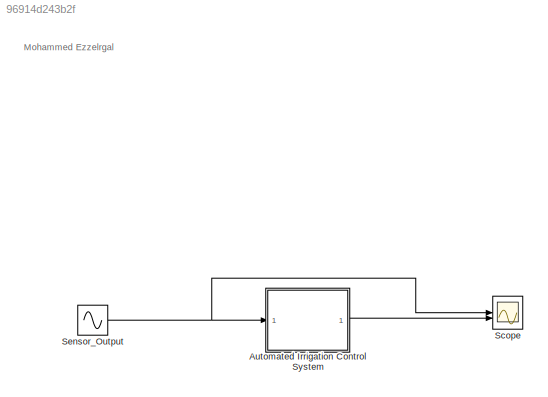
MODEL slx_96914d243b2f
KIND model
CONFIG AbsTol = auto
CONFIG EnableMultiTasking = off
CONFIG FixedStep = 1e-3
CONFIG MaxStep = auto
CONFIG MinStep = auto
CONFIG RelTol = 1e-3
CONFIG SampleTimeConstraint = Unconstrained
CONFIG SolverName = FixedStepAuto
CONFIG StartTime = 0.0
CONFIG StopTime = 100
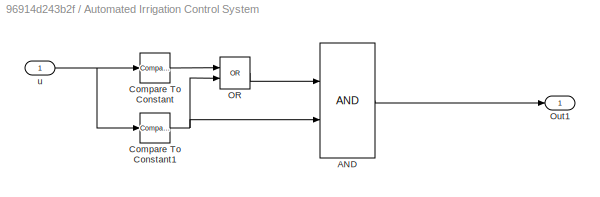
BLOCK [SubSystem] Automated Irrigation Control System
BLOCK [Logic] Automated Irrigation Control System/AND
  AllPortsSameDT = off
  OutDataTypeStr = boolean
BLOCK [Reference] Automated Irrigation Control System/Compare To Constant  REF=simulink/Logic and Bit
Operations/Compare
To Constant
  SourceBlock = simulink/Logic and Bit\nOperations/Compare\nTo Constant
  SourceType = Compare To Constant
BLOCK [Reference] Automated Irrigation Control System/Compare To Constant1  REF=simulink/Logic and Bit
Operations/Compare
To Constant
  SourceBlock = simulink/Logic and Bit\nOperations/Compare\nTo Constant
  SourceType = Compare To Constant
BLOCK [Logic] Automated Irrigation Control System/OR
  AllPortsSameDT = off
  IconShape = distinctive
  Operator = OR
  OutDataTypeStr = boolean
BLOCK [Outport] Automated Irrigation Control System/Out1
BLOCK [Inport] Automated Irrigation Control System/u
BLOCK [Scope] Scope
  Floating = off
  NumInputPorts = 2
  ScopeSpecificationString = Simulink.scopes.TimeScopeBlockCfg('CurrentConfiguration', extmgr.ConfigurationSet(extmgr.Configuration('Core','General UI',true),extmgr.Configuration('Core','Source UI',true),extmgr.Configuration('Sources','WiredSimulink',true),extmgr.Configuration('Visuals','Time Domain',true,'SerializedDisplays',{struct('MinYLimReal','-37.5','MaxYLimReal','37.5','YLabelReal','','MinYLimMag','0.00000','MaxYLimMag...<+2066ch>
BLOCK [Sin] Sensor_Output
  Amplitude = 30
  Frequency = 0.1
  SampleTime = 0
ANNOTATION (root): Mohammed Ezzelrgal
LINE Automated Irrigation Control System/AND:1 -> Automated Irrigation Control System/Out1:1
NET Automated Irrigation Control System/Compare To Constant1:1 -> Automated Irrigation Control System/AND:2, Automated Irrigation Control System/OR:2
LINE Automated Irrigation Control System/Compare To Constant:1 -> Automated Irrigation Control System/OR:1
LINE Automated Irrigation Control System/OR:1 -> Automated Irrigation Control System/AND:1
NET Automated Irrigation Control System/u:1 -> Automated Irrigation Control System/Compare To Constant1:1, Automated Irrigation Control System/Compare To Constant:1
LINE Automated Irrigation Control System:1 -> Scope:2
NET Sensor_Output:1 -> Automated Irrigation Control System:1, Scope:1
note: NET lines group one-source signal fan-out (src -> all destinations, sorted); 1:1 wires keep LINE
